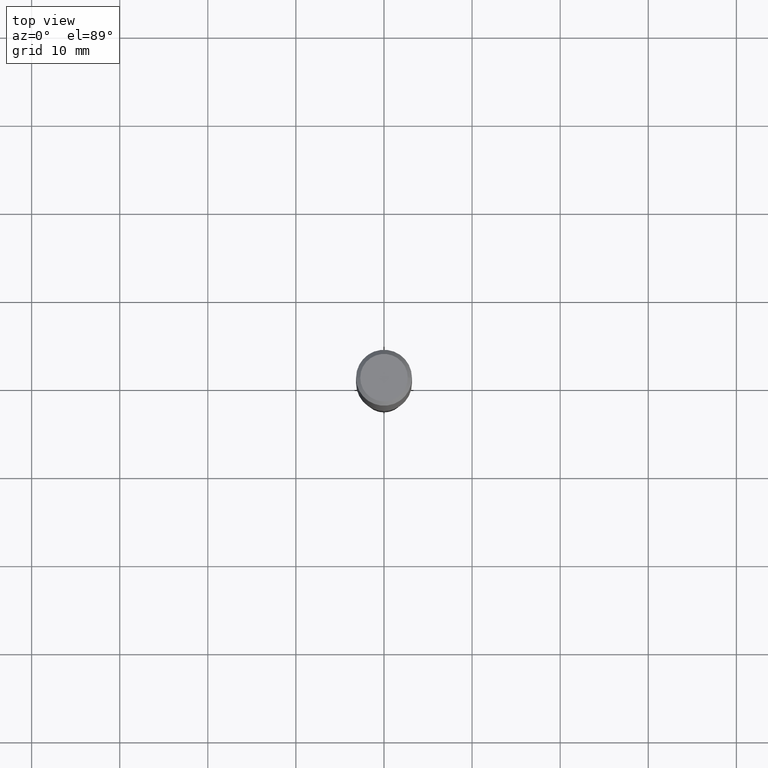
[diagram: clean part render]
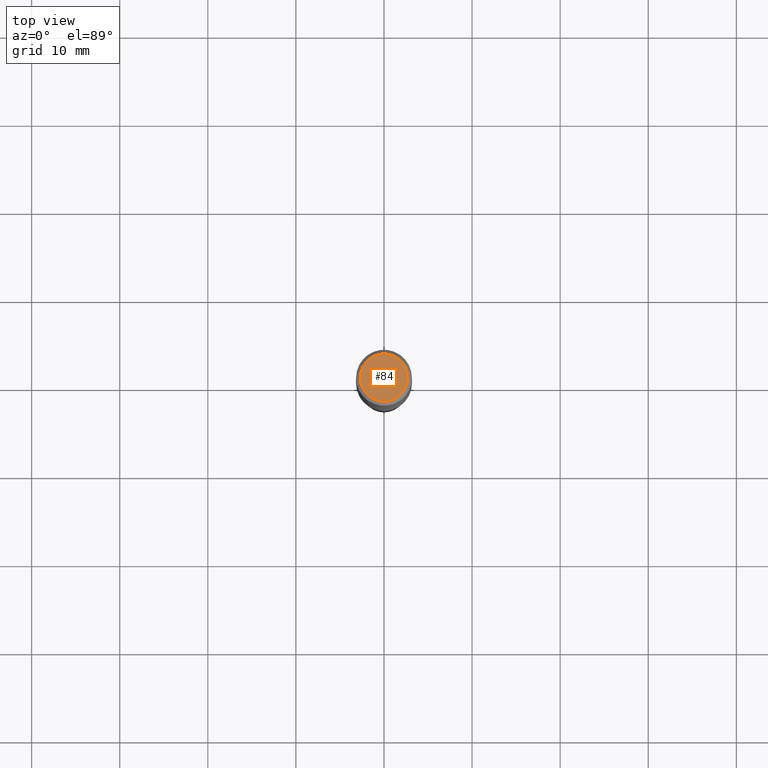
[diagram: same view with one face highlighted and labeled with its STEP entity id]
A machine part, top view. The second image highlights one B-rep face of the part: STEP entity #84.
In plain terms, the highlighted planar face has unit normal (0, -0, -1).
Its self-contained STEP definition (entity closure, byte-faithful):
#61 = EDGE_CURVE ( 'NONE', #87, #142, #329, .T. ) ;
#68 = DIRECTION ( 'NONE',  ( 1.000000000000000000, -6.982962677686266711E-15, 4.875930095424100059E-29 ) ) ;
#84 = ADVANCED_FACE ( 'NONE', ( #440 ), #425, .F. ) ;
#86 = DIRECTION ( 'NONE',  ( -2.445468806185136597E-29, 3.491481338843145583E-15, 1.000000000000000000 ) ) ;
#87 = VERTEX_POINT ( 'NONE', #395 ) ;
#92 = DIRECTION ( 'NONE',  ( 2.438088387897960049E-29, -3.491481338843145188E-15, -1.000000000000000000 ) ) ;
#95 = EDGE_LOOP ( 'NONE', ( #347, #216 ) ) ;
#110 = AXIS2_PLACEMENT_3D ( 'NONE', #273, #381, #201 ) ;
#142 = VERTEX_POINT ( 'NONE', #282 ) ;
#143 = DIRECTION ( 'NONE',  ( -1.000000000000000000, 6.982962677686265922E-15, -4.876176775795935793E-29 ) ) ;
#170 = CARTESIAN_POINT ( 'NONE',  ( -1.591006383764330940E-46, 2.271535455632768948E-32, 6.505936120470318766E-18 ) ) ;
#194 = CIRCLE ( 'NONE', #269, 0.1062499999999999972 ) ;
#201 = DIRECTION ( 'NONE',  ( 1.000000000000000000, -6.982962677686266711E-15, 4.875930095424100059E-29 ) ) ;
#216 = ORIENTED_EDGE ( 'NONE', *, *, #61, .T. ) ;
#263 = AXIS2_PLACEMENT_3D ( 'NONE', #357, #92, #143 ) ;
#269 = AXIS2_PLACEMENT_3D ( 'NONE', #170, #86, #68 ) ;
#273 = CARTESIAN_POINT ( 'NONE',  ( -1.591006383764330940E-46, 2.271535455632768948E-32, 6.505936120470318766E-18 ) ) ;
#274 = EDGE_CURVE ( 'NONE', #142, #87, #194, .T. ) ;
#282 = CARTESIAN_POINT ( 'NONE',  ( -0.1062499999999999972, 7.746724220558198188E-16, 6.505936120465015526E-18 ) ) ;
#329 = CIRCLE ( 'NONE', #110, 0.1062499999999999972 ) ;
#347 = ORIENTED_EDGE ( 'NONE', *, *, #274, .T. ) ;
#357 = CARTESIAN_POINT ( 'NONE',  ( -7.955031918821654702E-47, 1.135767727816384474E-32, 3.252968060235159383E-18 ) ) ;
#381 = DIRECTION ( 'NONE',  ( -2.445468806185136597E-29, 3.491481338843145583E-15, 1.000000000000000000 ) ) ;
#395 = CARTESIAN_POINT ( 'NONE',  ( 0.1062499999999999972, -8.259777185439879685E-16, 6.505936120475800733E-18 ) ) ;
#425 = PLANE ( 'NONE',  #263 ) ;
#440 = FACE_OUTER_BOUND ( 'NONE', #95, .T. ) ;